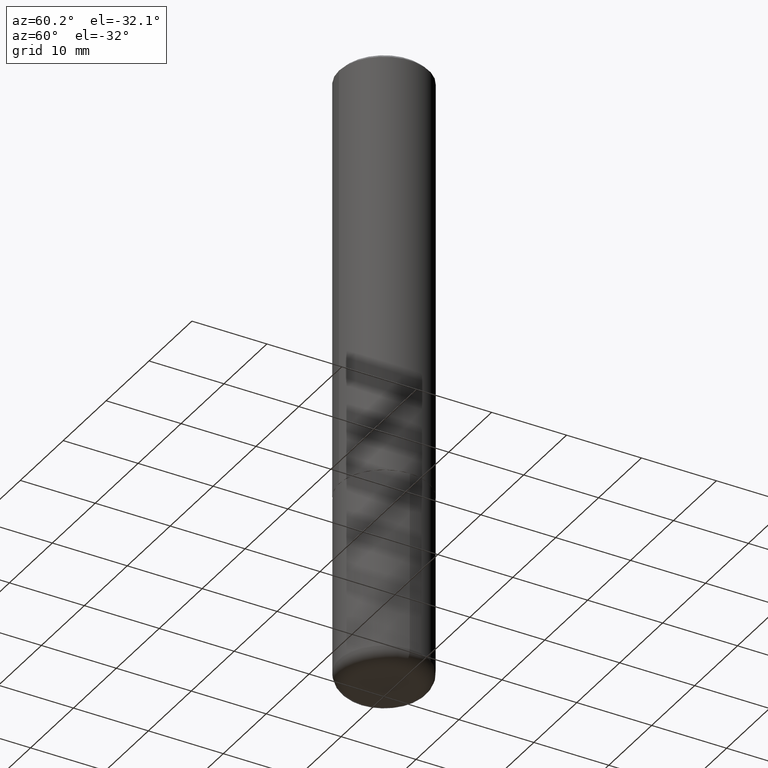
[diagram: clean part render]
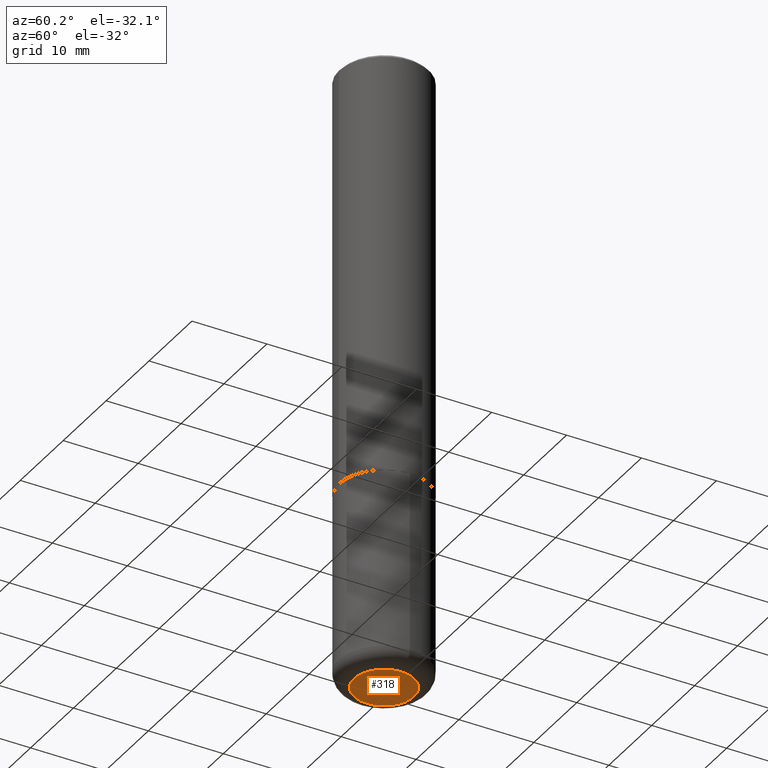
[diagram: same view with one face highlighted and labeled with its STEP entity id]
A machine part, auxiliary view. The second image highlights one B-rep face of the part: STEP entity #318.
In plain terms, the highlighted planar face has unit normal (0, -0, -1).
Its self-contained STEP definition (entity closure, byte-faithful):
#16 = CARTESIAN_POINT ( 'NONE',  ( 7.991058417971172834E-29, -1.140911357093774960E-14, -3.267700000000000937 ) ) ;
#18 = CIRCLE ( 'NONE', #352, 0.1575000000000000011 ) ;
#33 = VERTEX_POINT ( 'NONE', #291 ) ;
#35 = AXIS2_PLACEMENT_3D ( 'NONE', #16, #308, #302 ) ;
#58 = VERTEX_POINT ( 'NONE', #362 ) ;
#84 = DIRECTION ( 'NONE',  ( 1.000000000000000000, -6.982962677686261977E-15, 0.000000000000000000 ) ) ;
#122 = CARTESIAN_POINT ( 'NONE',  ( 7.991058417971172834E-29, -1.140911357093774960E-14, -3.267700000000000937 ) ) ;
#141 = PLANE ( 'NONE',  #296 ) ;
#180 = DIRECTION ( 'NONE',  ( -1.000000000000000000, 6.982962677686265922E-15, -4.876176775795935793E-29 ) ) ;
#213 = CARTESIAN_POINT ( 'NONE',  ( 7.538501650987437905E-31, -2.274480841398118534E-14, -3.267700000000000937 ) ) ;
#215 = CIRCLE ( 'NONE', #35, 0.1575000000000000011 ) ;
#259 = EDGE_CURVE ( 'NONE', #33, #58, #215, .T. ) ;
#291 = CARTESIAN_POINT ( 'NONE',  ( 0.1575000000000000011, -1.250893019267333471E-14, -3.267700000000000937 ) ) ;
#296 = AXIS2_PLACEMENT_3D ( 'NONE', #213, #374, #180 ) ;
#302 = DIRECTION ( 'NONE',  ( 1.000000000000000000, -6.982962677686261977E-15, 0.000000000000000000 ) ) ;
#303 = FACE_OUTER_BOUND ( 'NONE', #355, .T. ) ;
#308 = DIRECTION ( 'NONE',  ( -2.445468806185136597E-29, 3.491481338843145583E-15, 1.000000000000000000 ) ) ;
#318 = ADVANCED_FACE ( 'NONE', ( #303 ), #141, .T. ) ;
#321 = ORIENTED_EDGE ( 'NONE', *, *, #386, .F. ) ;
#352 = AXIS2_PLACEMENT_3D ( 'NONE', #122, #378, #84 ) ;
#355 = EDGE_LOOP ( 'NONE', ( #385, #321 ) ) ;
#362 = CARTESIAN_POINT ( 'NONE',  ( -0.1575000000000000011, -9.873020404910514350E-15, -3.267700000000000937 ) ) ;
#374 = DIRECTION ( 'NONE',  ( 2.438088387897960049E-29, -3.491481338843145188E-15, -1.000000000000000000 ) ) ;
#378 = DIRECTION ( 'NONE',  ( -2.445468806185136597E-29, 3.491481338843145583E-15, 1.000000000000000000 ) ) ;
#385 = ORIENTED_EDGE ( 'NONE', *, *, #259, .F. ) ;
#386 = EDGE_CURVE ( 'NONE', #58, #33, #18, .T. ) ;